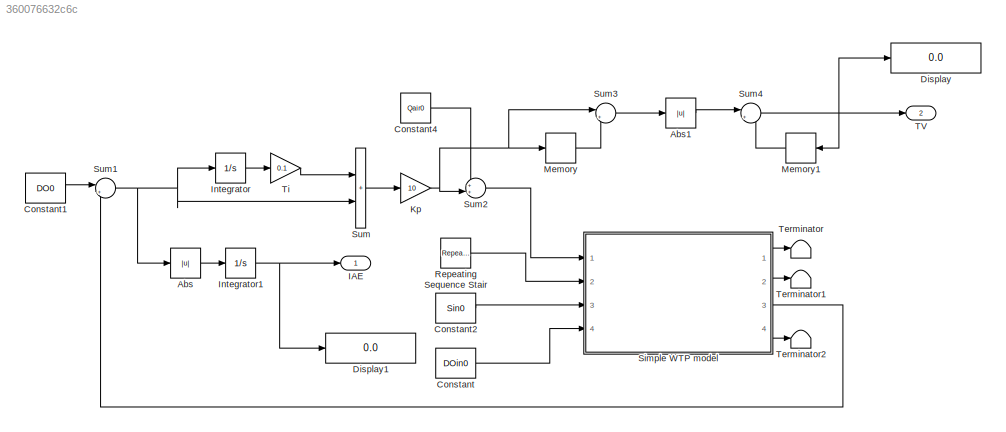
MODEL slx_360076632c6c
KIND model
CONFIG AbsTol = auto
CONFIG EnableMultiTasking = off
CONFIG FixedStep = 0.1
CONFIG MaxStep = auto
CONFIG MinStep = auto
CONFIG RelTol = 1e-3
CONFIG SampleTimeConstraint = Unconstrained
CONFIG Solver = ode4
CONFIG SolverName = ode4
CONFIG StartTime = 0.0
CONFIG StopTime = 200
BLOCK [Abs] Abs
  SaturateOnIntegerOverflow = off
BLOCK [Abs] Abs1
  SaturateOnIntegerOverflow = off
BLOCK [Constant] Constant
  Value = DOin0
BLOCK [Constant] Constant1
  Value = DO0
BLOCK [Constant] Constant2
  Value = Sin0
BLOCK [Constant] Constant4
  Value = Qair0
BLOCK [Display] Display
  Decimation = 1
  Ports = [1]
BLOCK [Display] Display1
  Decimation = 1
  Ports = [1]
BLOCK [Outport] IAE
BLOCK [Integrator] Integrator
  Ports = [1, 1]
BLOCK [Integrator] Integrator1
  Ports = [1, 1]
BLOCK [Gain] Kp
  Gain = 10
BLOCK [Memory] Memory
BLOCK [Memory] Memory1
BLOCK [Reference] Repeating Sequence Stair  REF=simulink/Sources/Repeating
Sequence
Stair
  Ports = [0, 1]
  SourceBlock = simulink/Sources/Repeating\nSequence\nStair
  SourceProductBaseCode = SL
  SourceType = Repeating Sequence Stair
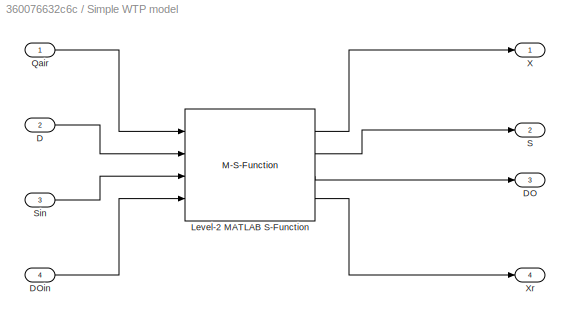
BLOCK [SubSystem] Simple WTP model
  Ports = [4, 4]
  RequestExecContextInheritance = off
BLOCK [Inport] Simple WTP model/D
  Port = 2
BLOCK [Outport] Simple WTP model/DO
  Port = 3
BLOCK [Inport] Simple WTP model/DOin
  Port = 4
BLOCK [M-S-Function] Simple WTP model/Level-2 MATLAB S-Function
  FunctionName = sfun_WTP
  Parameters = [Y;\nr;\nbeta;\nKDO;alpha;\numax; Ks; K0;\nDOmax], [X0;S0;DO0;Xr0]
  Ports = [4, 4]
BLOCK [Inport] Simple WTP model/Qair
BLOCK [Outport] Simple WTP model/S
  Port = 2
BLOCK [Inport] Simple WTP model/Sin
  Port = 3
BLOCK [Outport] Simple WTP model/X
BLOCK [Outport] Simple WTP model/Xr
  Port = 4
BLOCK [Sum] Sum
  IconShape = rectangular
  Ports = [2, 1]
BLOCK [Sum] Sum1
  Inputs = |+-
  Ports = [2, 1]
BLOCK [Sum] Sum2
  Inputs = ++|
  Ports = [2, 1]
BLOCK [Sum] Sum3
  Inputs = |+-
  Ports = [2, 1]
BLOCK [Sum] Sum4
  Inputs = |++
  Ports = [2, 1]
BLOCK [Outport] TV
  Port = 2
BLOCK [Terminator] Terminator
BLOCK [Terminator] Terminator1
BLOCK [Terminator] Terminator2
BLOCK [Gain] Ti
  Gain = 0.1
LINE Abs1:1 -> Sum4:1
LINE Abs:1 -> Integrator1:1
LINE Constant1:1 -> Sum1:1
LINE Constant2:1 -> Simple WTP model:3
LINE Constant4:1 -> Sum2:1
LINE Constant:1 -> Simple WTP model:4
NET Integrator1:1 -> Display1:1, IAE:1
LINE Integrator:1 -> Ti:1
NET Kp:1 -> Memory:1, Sum2:2, Sum3:1
LINE Memory1:1 -> Sum4:2
LINE Memory:1 -> Sum3:2
LINE Repeating Sequence Stair:1 -> Simple WTP model:2
LINE Simple WTP model/D:1 -> Simple WTP model/Level-2 MATLAB S-Function:2
LINE Simple WTP model/DOin:1 -> Simple WTP model/Level-2 MATLAB S-Function:4
LINE Simple WTP model/Level-2 MATLAB S-Function:1 -> Simple WTP model/X:1
LINE Simple WTP model/Level-2 MATLAB S-Function:2 -> Simple WTP model/S:1
LINE Simple WTP model/Level-2 MATLAB S-Function:3 -> Simple WTP model/DO:1
LINE Simple WTP model/Level-2 MATLAB S-Function:4 -> Simple WTP model/Xr:1
LINE Simple WTP model/Qair:1 -> Simple WTP model/Level-2 MATLAB S-Function:1
LINE Simple WTP model/Sin:1 -> Simple WTP model/Level-2 MATLAB S-Function:3
LINE Simple WTP model:1 -> Terminator:1
LINE Simple WTP model:2 -> Terminator1:1
LINE Simple WTP model:3 -> Sum1:2
LINE Simple WTP model:4 -> Terminator2:1
NET Sum1:1 -> Abs:1, Integrator:1, Sum:2
LINE Sum2:1 -> Simple WTP model:1
LINE Sum3:1 -> Abs1:1
NET Sum4:1 -> Display:1, Memory1:1, TV:1
LINE Sum:1 -> Kp:1
LINE Ti:1 -> Sum:1
note: NET lines group one-source signal fan-out (src -> all destinations, sorted); 1:1 wires keep LINE
